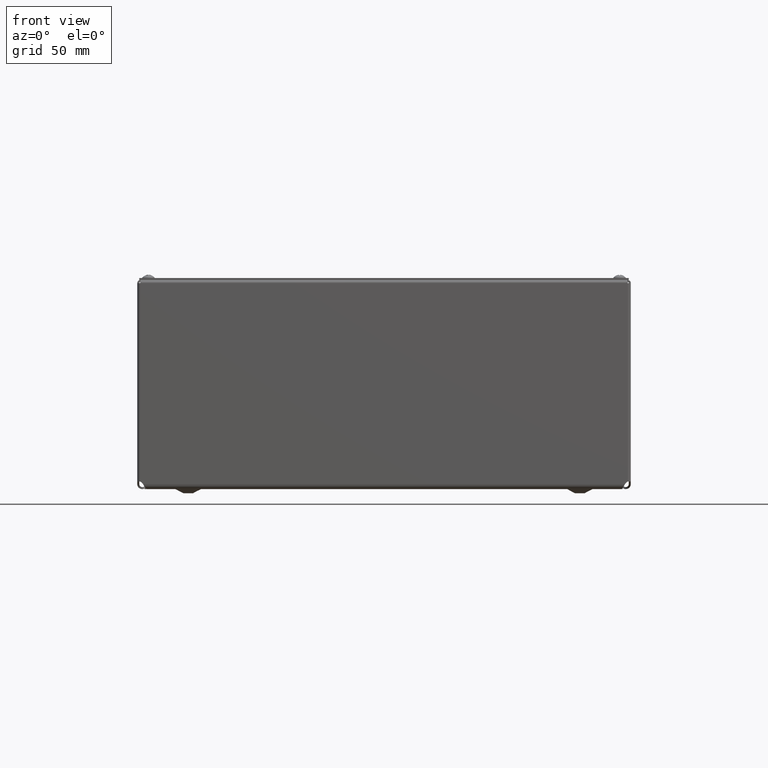
[diagram: clean part render]
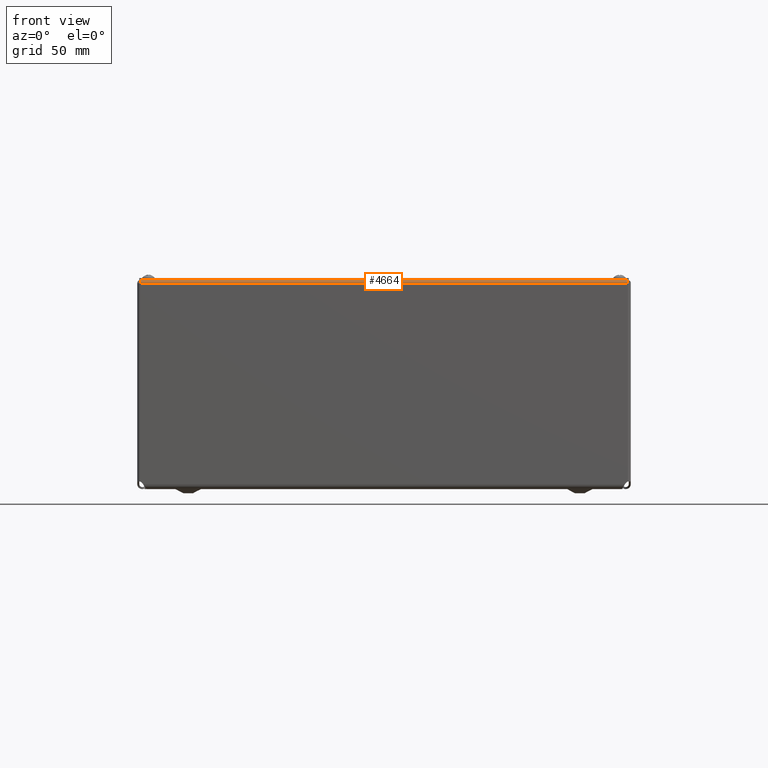
[diagram: same view with one face highlighted and labeled with its STEP entity id]
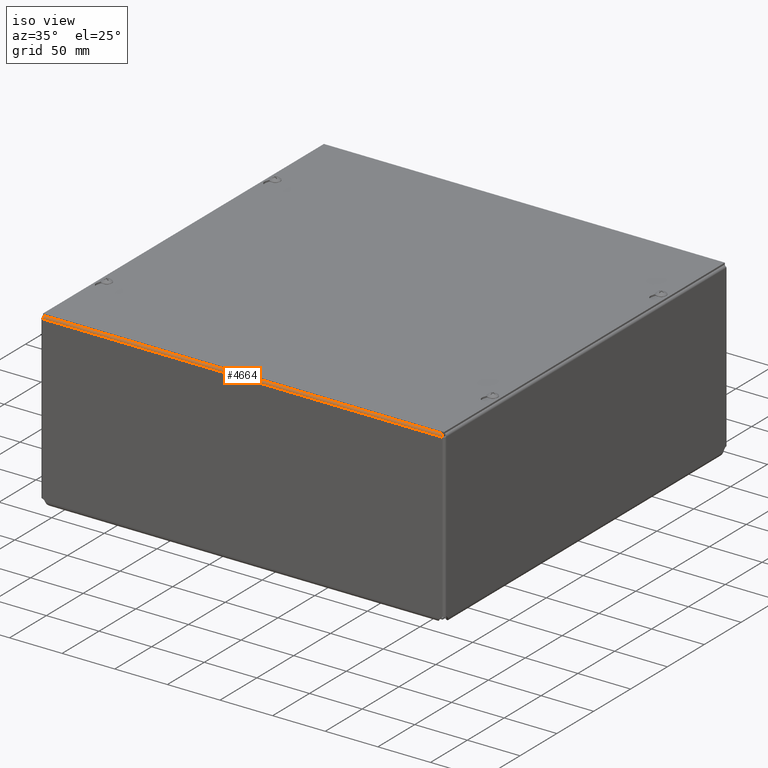
[diagram: same view with one face highlighted and labeled with its STEP entity id]
A machine part, front view. The second image highlights one B-rep face of the part: STEP entity #4664.
A second angle (iso view) of the same face is appended — the face is thin or edge-on in the first view.
In plain terms, the highlighted cylindrical surface (edge-blend (fillet) strip) has radius 2.3685 mm, axis along (-1, -0, 0).
Its self-contained STEP definition (entity closure, byte-faithful):
#109=B_SPLINE_CURVE_WITH_KNOTS($,3,(#8267,#8268,#8269,#8270,#8271,#8272,
#8273),.UNSPECIFIED.,.F.,.F.,(4,3,4),(0.,0.897597901025655,1.5707963267949),
 .UNSPECIFIED.);
#110=B_SPLINE_CURVE_WITH_KNOTS($,3,(#8274,#8275,#8276,#8277,#8278,#8279,
#8280),.UNSPECIFIED.,.F.,.F.,(4,3,4),(0.,0.673198425769297,1.5707963267949),
 .UNSPECIFIED.);
#381=LINE($,#7878,#732);
#449=LINE($,#8266,#800);
#732=VECTOR($,#5725,14.9385);
#800=VECTOR($,#5895,14.9164029130879);
#1072=CYLINDRICAL_SURFACE($,#5016,0.0932499999999904);
#1385=FACE_OUTER_BOUND($,#1740,.T.);
#1740=EDGE_LOOP($,(#3743,#3744,#3745,#3746));
#2215=VERTEX_POINT($,#7809);
#2231=VERTEX_POINT($,#7877);
#2265=VERTEX_POINT($,#8264);
#2266=VERTEX_POINT($,#8265);
#2697=EDGE_CURVE($,#2215,#2231,#381,.T.);
#2785=EDGE_CURVE($,#2265,#2266,#449,.T.);
#2786=EDGE_CURVE($,#2231,#2265,#109,.T.);
#2787=EDGE_CURVE($,#2266,#2215,#110,.T.);
#3743=ORIENTED_EDGE($,*,*,#2785,.F.);
#3744=ORIENTED_EDGE($,*,*,#2786,.F.);
#3745=ORIENTED_EDGE($,*,*,#2697,.F.);
#3746=ORIENTED_EDGE($,*,*,#2787,.F.);
#4664=ADVANCED_FACE($,(#1385),#1072,.T.);
#5016=AXIS2_PLACEMENT_3D($,#8263,#5893,#5894);
#5725=DIRECTION($,(1.55983071262839E-013,-1.36295491595498E-016,-1.));
#5893=DIRECTION('center_axis',(1.55983071262839E-013,-1.35912791678955E-016,
-1.));
#5894=DIRECTION('ref_axis',(1.,-4.15095611572941E-018,1.55983071262839E-013));
#5895=DIRECTION($,(-1.55983071262839E-013,1.36737054593706E-016,1.));
#7809=CARTESIAN_POINT('',(7.56250000000024,-3.0625,-29.9903222833427));
#7877=CARTESIAN_POINT('',(7.56250000000257,-3.0625,-44.9288222833427));
#7878=CARTESIAN_POINT($,(7.56250000000082,-3.0625,-33.7249472833427));
#8263=CARTESIAN_POINT('Origin',(7.4692500000014,-3.0625,-37.4595722833427));
#8264=CARTESIAN_POINT('',(7.46925000000256,-3.15575000000001,-44.9177737398867));
#8265=CARTESIAN_POINT('',(7.46925000000024,-3.15575000000001,-30.0013708267988));
#8266=CARTESIAN_POINT($,(7.4692500000014,-3.15575,-37.4595722833427));
#8267=CARTESIAN_POINT('Ctrl Pts',(7.56250000000257,-3.06249999999999,-44.9288222833427));
#8268=CARTESIAN_POINT('Ctrl Pts',(7.56250000000256,-3.09040033475687,-44.9267177988748));
#8269=CARTESIAN_POINT('Ctrl Pts',(7.5491064579647,-3.11798803680613,-44.924613314407));
#8270=CARTESIAN_POINT('Ctrl Pts',(7.52740357656363,-3.1353856027152,-44.9225088299392));
#8271=CARTESIAN_POINT('Ctrl Pts',(7.51112641551283,-3.148433777147,-44.9209304665884));
#8272=CARTESIAN_POINT('Ctrl Pts',(7.49017525107022,-3.15574999999995,-44.9193521032375));
#8273=CARTESIAN_POINT('Ctrl Pts',(7.46925000000257,-3.15574999999995,-44.9177737398866));
#8274=CARTESIAN_POINT('Ctrl Pts',(7.46925000000025,-3.15575,-30.0013708267988));
#8275=CARTESIAN_POINT('Ctrl Pts',(7.49017525106791,-3.15575,-29.9997924634479));
#8276=CARTESIAN_POINT('Ctrl Pts',(7.51112642620299,-3.14843378997649,-29.9982141000971));
#8277=CARTESIAN_POINT('Ctrl Pts',(7.52740358878129,-3.13538561737746,-29.9966357367462));
#8278=CARTESIAN_POINT('Ctrl Pts',(7.54910647221902,-3.11798805391208,-29.9945312522784));
#8279=CARTESIAN_POINT('Ctrl Pts',(7.56250000000024,-3.09040033475688,-29.9924267678106));
#8280=CARTESIAN_POINT('Ctrl Pts',(7.56250000000024,-3.0625,-29.9903222833427));